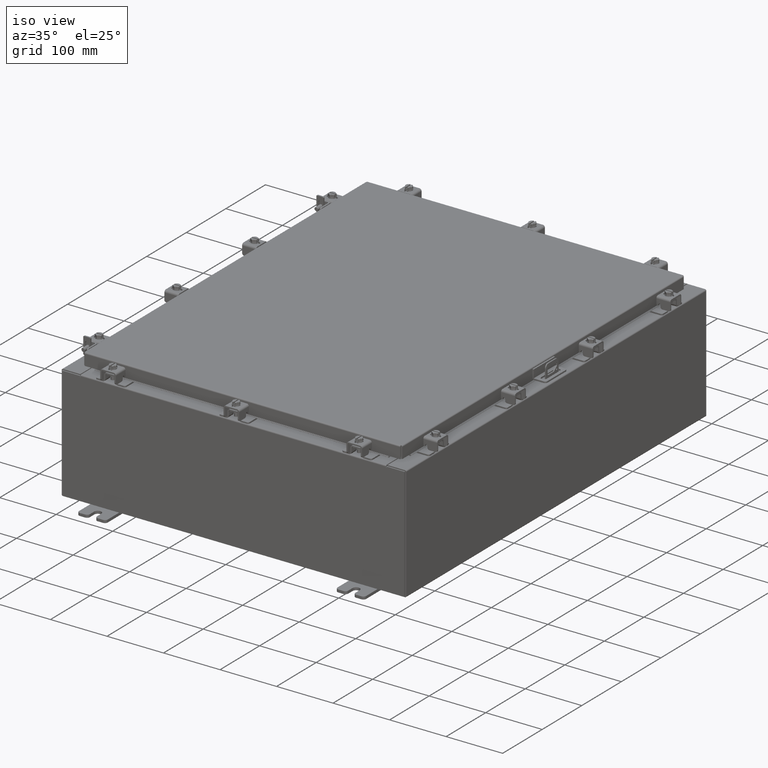
[diagram: clean part render]
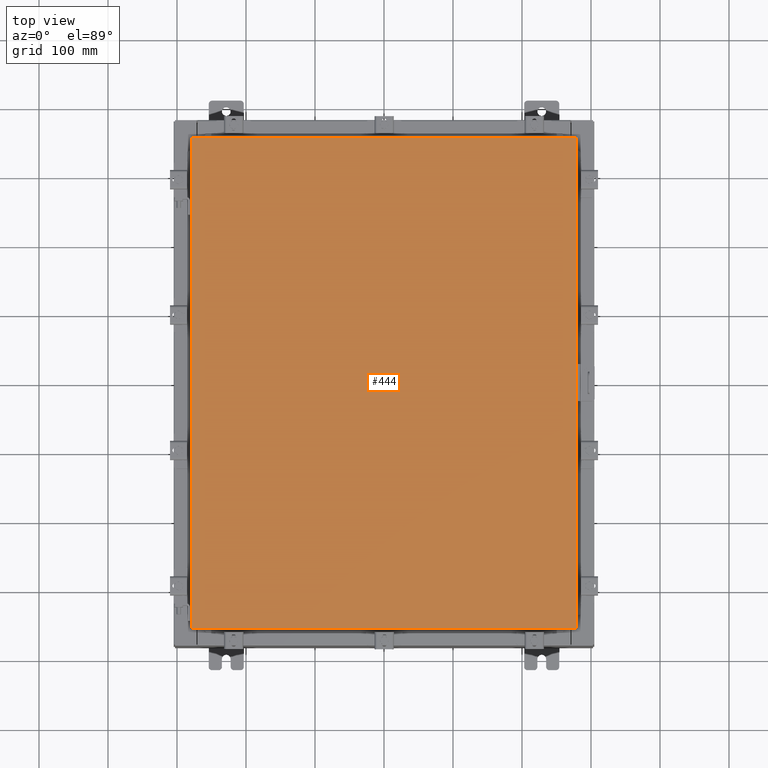
[diagram: tour spotlight — one face highlighted and labeled with its STEP entity id]
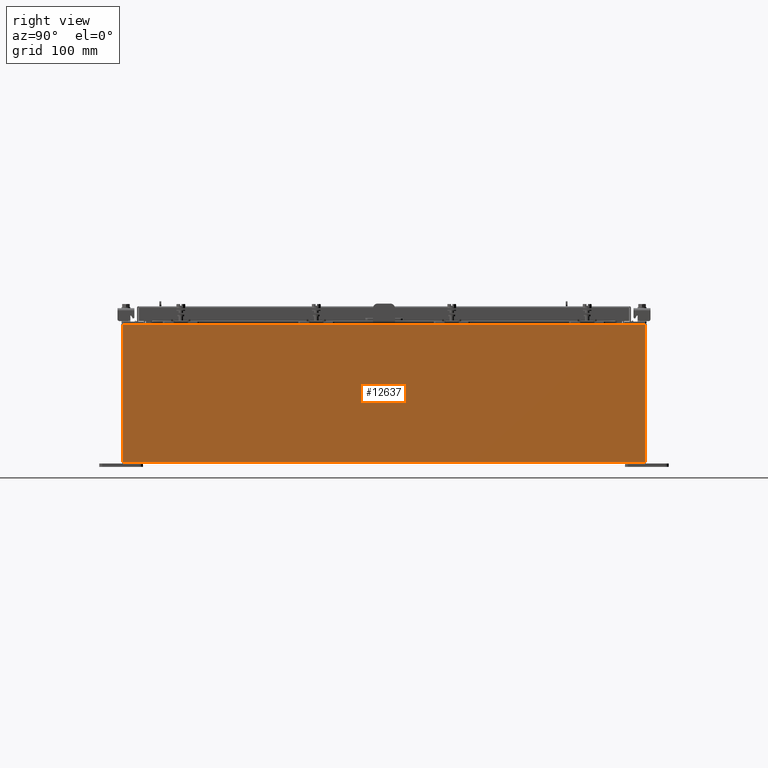
[diagram: tour spotlight — one face highlighted and labeled with its STEP entity id]
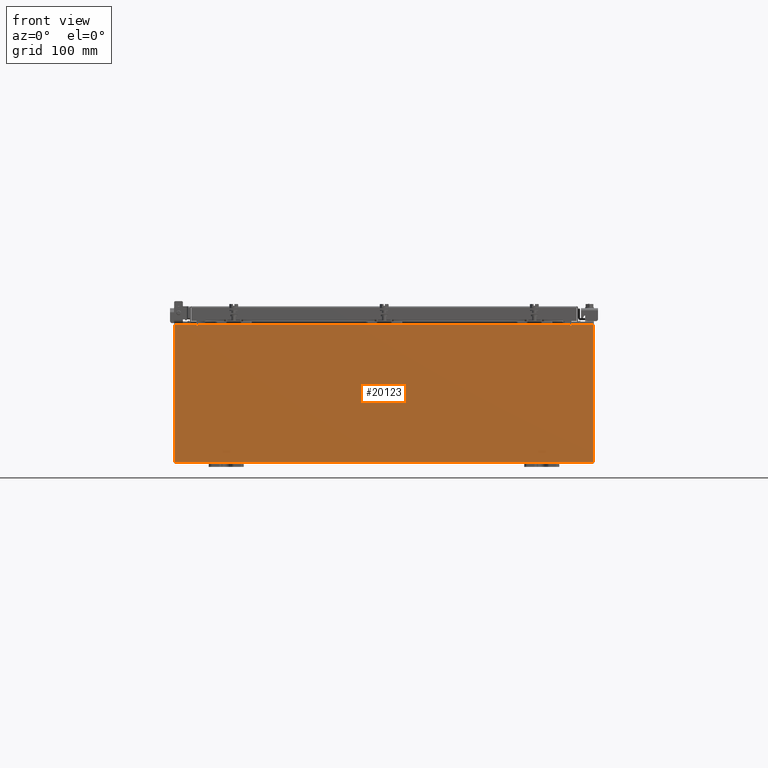
[diagram: tour spotlight — one face highlighted and labeled with its STEP entity id]
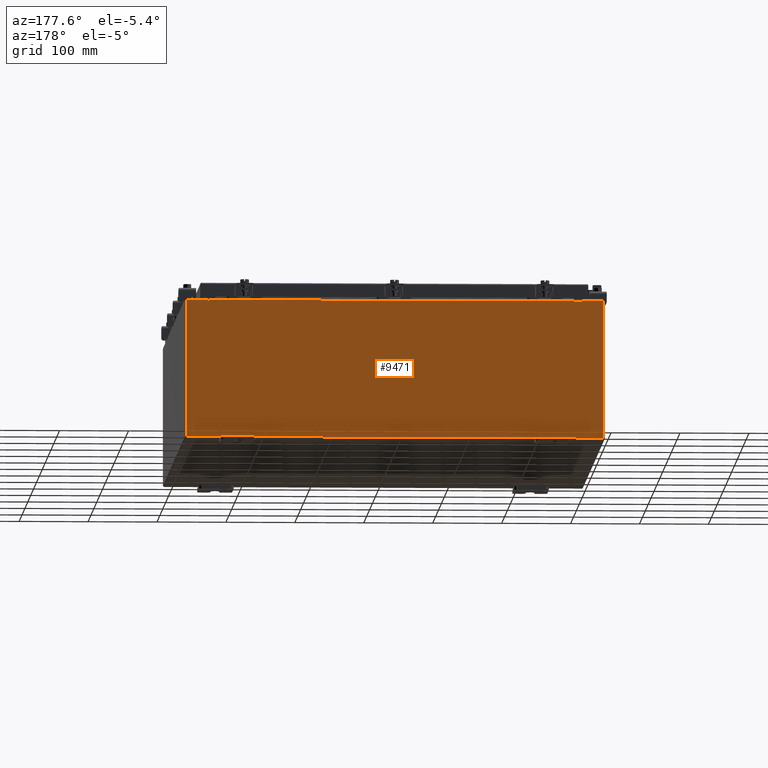
[diagram: tour spotlight — one face highlighted and labeled with its STEP entity id]
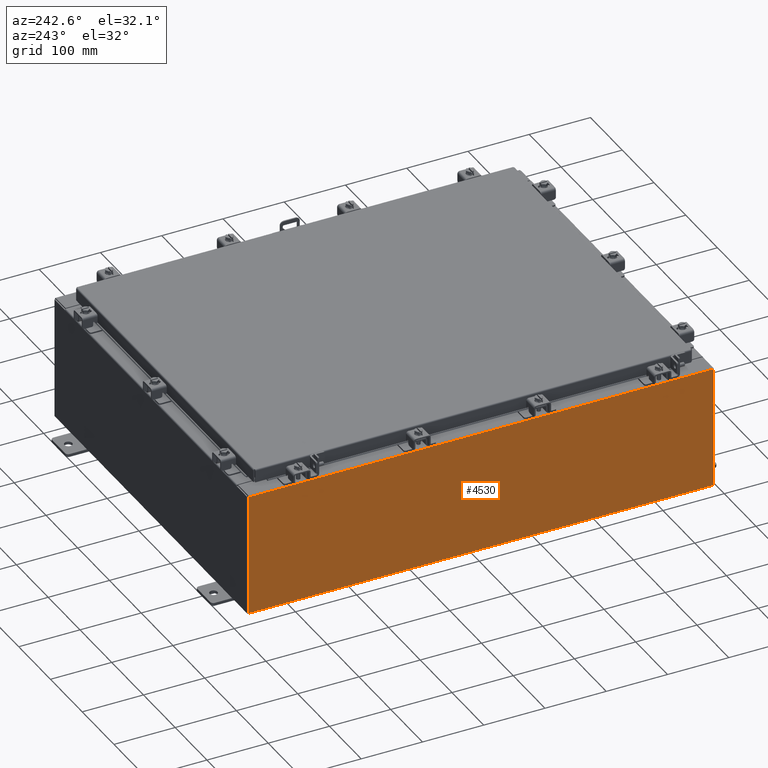
[diagram: tour spotlight — one face highlighted and labeled with its STEP entity id]
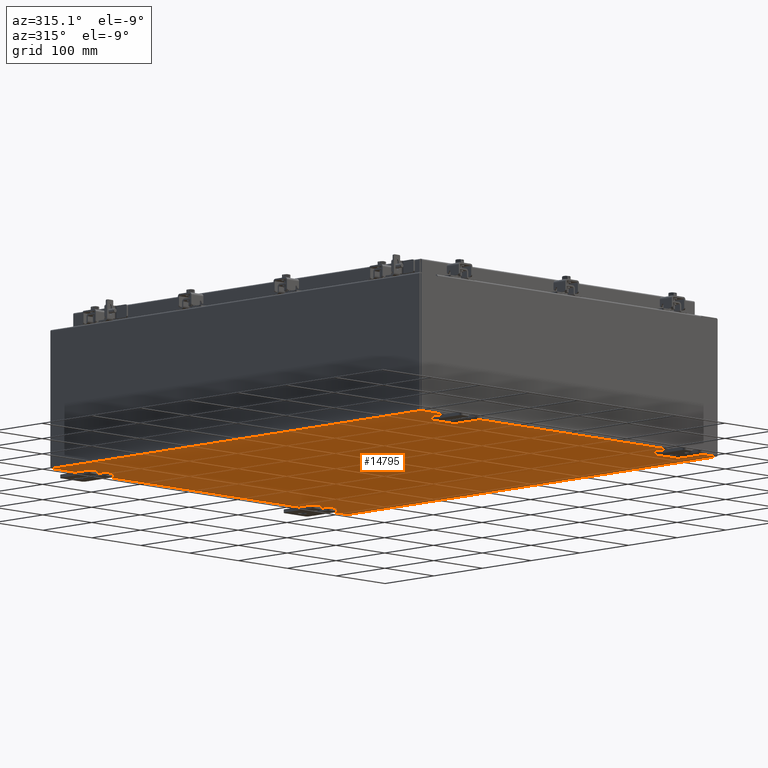
[diagram: tour spotlight — one face highlighted and labeled with its STEP entity id]
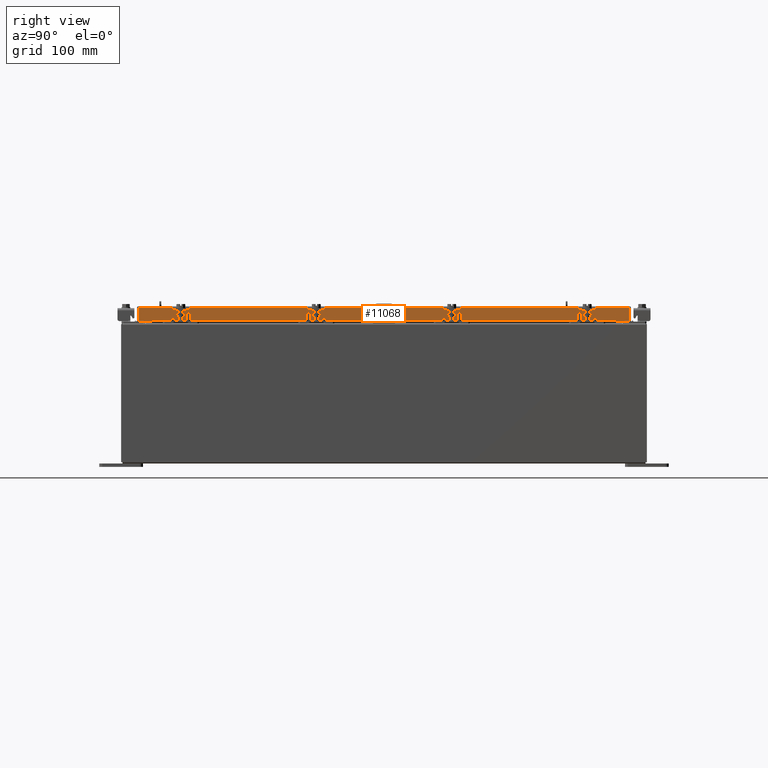
[diagram: tour spotlight — one face highlighted and labeled with its STEP entity id]
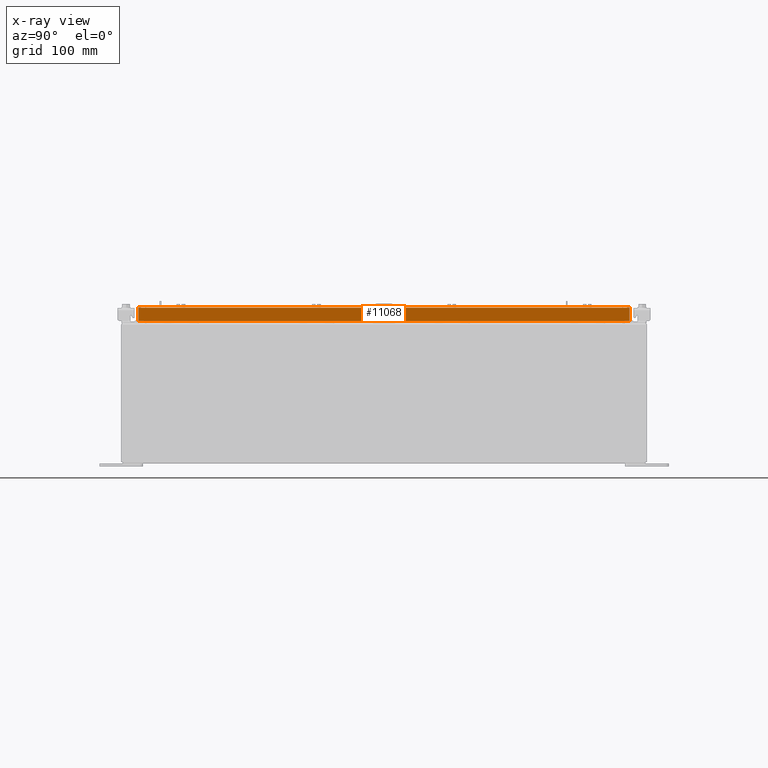
[diagram: x-ray of the same camera — body ghosted, this tour face saturated]
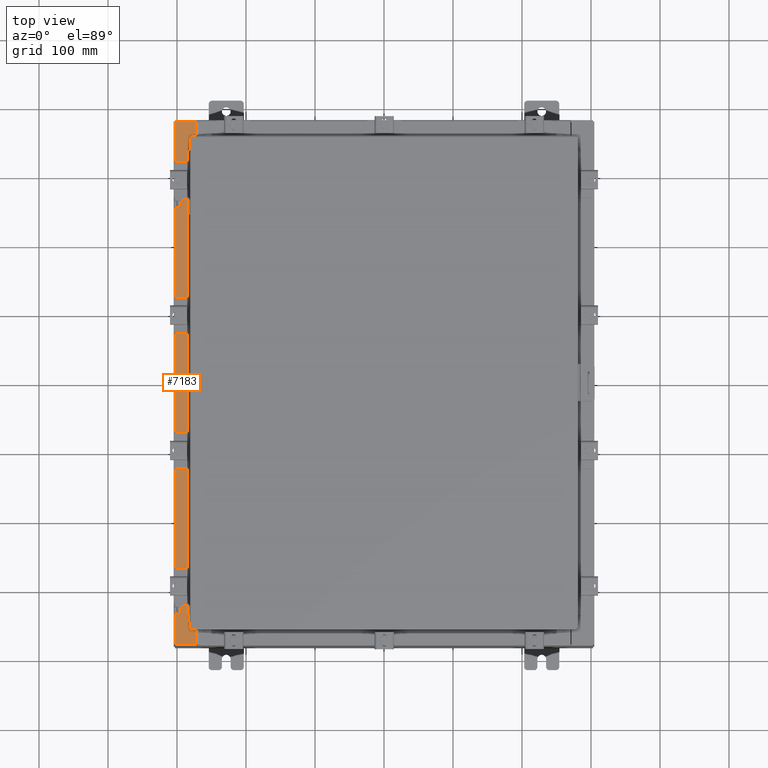
[diagram: tour spotlight — one face highlighted and labeled with its STEP entity id]
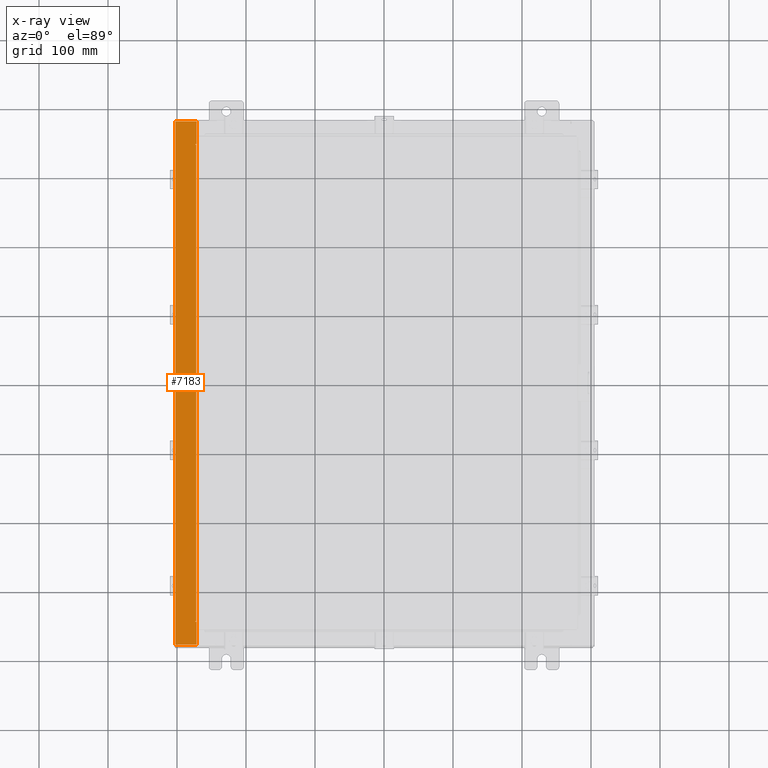
[diagram: x-ray of the same camera — body ghosted, this tour face saturated]
A machine part: a face-by-face anatomy tour. The part has 2272 B-rep faces; the first image is the clean iso view, then the 8 largest visible faces are spotlighted one at a time (largest first), each with its STEP entity span.

Face 1 — top view, entity #444. In plain terms, the highlighted planar face has unit normal (0, 0, -1).
Definition (entity closure, byte-faithful):
#444 = ADVANCED_FACE ( 'NONE', ( #2189 ), #13912, .F. ) ;
#977 = CARTESIAN_POINT ( 'NONE',  ( 10.99030000000000000, 14.00629999999999800, -2.048885995248197400E-016 ) ) ;
#1174 = ORIENTED_EDGE ( 'NONE', *, *, #12288, .T. ) ;
#1183 = CARTESIAN_POINT ( 'NONE',  ( -10.99030000000000000, 14.00630000000000100, -2.048885995248197400E-016 ) ) ;
#1711 = DIRECTION ( 'NONE',  ( 0.0000000000000000000, -1.000000000000000000, 0.0000000000000000000 ) ) ;
#2181 = LINE ( 'NONE', #12669, #6391 ) ;
#2189 = FACE_OUTER_BOUND ( 'NONE', #7653, .T. ) ;
#2960 = CARTESIAN_POINT ( 'NONE',  ( 10.99030000000000000, -14.00629999999999800, -2.048885995248197400E-016 ) ) ;
#3366 = DIRECTION ( 'NONE',  ( 0.0000000000000000000, 0.0000000000000000000, -1.000000000000000000 ) ) ;
#3475 = ORIENTED_EDGE ( 'NONE', *, *, #15108, .T. ) ;
#6391 = VECTOR ( 'NONE', #16245, 39.37007874015748100 ) ;
#6789 = LINE ( 'NONE', #977, #11558 ) ;
#7653 = EDGE_LOOP ( 'NONE', ( #22425, #3475, #1174, #15650 ) ) ;
#8072 = CARTESIAN_POINT ( 'NONE',  ( 10.99030000000000000, 14.00629999999999800, -2.048885995248197400E-016 ) ) ;
#8384 = EDGE_CURVE ( 'NONE', #9385, #17453, #2181, .T. ) ;
#8465 = CARTESIAN_POINT ( 'NONE',  ( 10.99030000000000000, -14.00629999999999800, -2.048885995248197400E-016 ) ) ;
#8575 = LINE ( 'NONE', #8465, #22800 ) ;
#9035 = VERTEX_POINT ( 'NONE', #8072 ) ;
#9385 = VERTEX_POINT ( 'NONE', #14160 ) ;
#11558 = VECTOR ( 'NONE', #13510, 39.37007874015748100 ) ;
#12288 = EDGE_CURVE ( 'NONE', #9035, #13798, #6789, .T. ) ;
#12669 = CARTESIAN_POINT ( 'NONE',  ( -10.99029999999999600, -14.00629999999999800, -2.219626494852214000E-016 ) ) ;
#12810 = LINE ( 'NONE', #15965, #22846 ) ;
#13135 = DIRECTION ( 'NONE',  ( -1.000000000000000000, 0.0000000000000000000, -0.0000000000000000000 ) ) ;
#13510 = DIRECTION ( 'NONE',  ( -1.000000000000000000, -0.0000000000000000000, -0.0000000000000000000 ) ) ;
#13798 = VERTEX_POINT ( 'NONE', #1183 ) ;
#13912 = PLANE ( 'NONE',  #19141 ) ;
#14057 = EDGE_CURVE ( 'NONE', #13798, #9385, #12810, .T. ) ;
#14160 = CARTESIAN_POINT ( 'NONE',  ( -10.99029999999999800, -14.00629999999999800, -2.048885995248197400E-016 ) ) ;
#14165 = CARTESIAN_POINT ( 'NONE',  ( 0.0000000000000000000, 0.0000000000000000000, 0.0000000000000000000 ) ) ;
#15108 = EDGE_CURVE ( 'NONE', #17453, #9035, #8575, .T. ) ;
#15650 = ORIENTED_EDGE ( 'NONE', *, *, #14057, .T. ) ;
#15965 = CARTESIAN_POINT ( 'NONE',  ( -10.99030000000000000, 14.00630000000000100, -2.048885995248197400E-016 ) ) ;
#16245 = DIRECTION ( 'NONE',  ( 1.000000000000000000, -0.0000000000000000000, -0.0000000000000000000 ) ) ;
#17453 = VERTEX_POINT ( 'NONE', #2960 ) ;
#19141 = AXIS2_PLACEMENT_3D ( 'NONE', #14165, #3366, #13135 ) ;
#19190 = DIRECTION ( 'NONE',  ( 0.0000000000000000000, 1.000000000000000000, 0.0000000000000000000 ) ) ;
#22425 = ORIENTED_EDGE ( 'NONE', *, *, #8384, .T. ) ;
#22800 = VECTOR ( 'NONE', #19190, 39.37007874015748100 ) ;
#22846 = VECTOR ( 'NONE', #1711, 39.37007874015748100 ) ;

Face 2 — right view, entity #12637. In plain terms, the highlighted planar face has unit normal (-1, 0, 0).
Definition (entity closure, byte-faithful):
#80 = DIRECTION ( 'NONE',  ( 3.584876173029202900E-015, 0.0000000000000000000, 1.000000000000000000 ) ) ;
#2300 = CARTESIAN_POINT ( 'NONE',  ( 11.99999999999999600, 14.92530000000000000, -4.327932773236200000E-014 ) ) ;
#2888 = ORIENTED_EDGE ( 'NONE', *, *, #18804, .T. ) ;
#4351 = EDGE_LOOP ( 'NONE', ( #11504, #22464, #8270, #2888 ) ) ;
#4611 = DIRECTION ( 'NONE',  ( -0.0000000000000000000, -1.000000000000000000, -0.0000000000000000000 ) ) ;
#8270 = ORIENTED_EDGE ( 'NONE', *, *, #11906, .F. ) ;
#8442 = DIRECTION ( 'NONE',  ( -3.584876173029202900E-015, 0.0000000000000000000, -1.000000000000000000 ) ) ;
#8918 = DIRECTION ( 'NONE',  ( 2.624627117933885000E-031, -1.000000000000000000, 7.321388497823866900E-017 ) ) ;
#9026 = FACE_OUTER_BOUND ( 'NONE', #4351, .T. ) ;
#9531 = VERTEX_POINT ( 'NONE', #12752 ) ;
#9820 = VECTOR ( 'NONE', #8442, 39.37007874015748100 ) ;
#10509 = CARTESIAN_POINT ( 'NONE',  ( 12.00000000000002500, -14.92530000000000200, 7.837599999999998300 ) ) ;
#10815 = DIRECTION ( 'NONE',  ( -1.000000000000000000, 0.0000000000000000000, 3.584876173029202900E-015 ) ) ;
#11077 = LINE ( 'NONE', #17133, #11657 ) ;
#11205 = DIRECTION ( 'NONE',  ( 3.584876173029202900E-015, 0.0000000000000000000, 1.000000000000000000 ) ) ;
#11504 = ORIENTED_EDGE ( 'NONE', *, *, #21220, .T. ) ;
#11657 = VECTOR ( 'NONE', #4611, 39.37007874015748100 ) ;
#11906 = EDGE_CURVE ( 'NONE', #9531, #12717, #14095, .T. ) ;
#12637 = ADVANCED_FACE ( 'NONE', ( #9026 ), #14336, .F. ) ;
#12717 = VERTEX_POINT ( 'NONE', #18124 ) ;
#12752 = CARTESIAN_POINT ( 'NONE',  ( 11.99999999999999600, 14.92530000000000000, 0.01299999999999766100 ) ) ;
#13276 = VERTEX_POINT ( 'NONE', #10509 ) ;
#14021 = LINE ( 'NONE', #20920, #9820 ) ;
#14095 = LINE ( 'NONE', #21382, #18876 ) ;
#14336 = PLANE ( 'NONE',  #14553 ) ;
#14553 = AXIS2_PLACEMENT_3D ( 'NONE', #21521, #10815, #80 ) ;
#16423 = CARTESIAN_POINT ( 'NONE',  ( 12.00000000000002500, 14.92530000000000200, 7.837599999999992100 ) ) ;
#17133 = CARTESIAN_POINT ( 'NONE',  ( 12.00000000000002500, 14.92530000000000200, 7.837599999999992100 ) ) ;
#18124 = CARTESIAN_POINT ( 'NONE',  ( 11.99999999999999600, -14.92530000000000000, 0.01299999999999996600 ) ) ;
#18445 = EDGE_CURVE ( 'NONE', #13276, #12717, #14021, .T. ) ;
#18804 = EDGE_CURVE ( 'NONE', #9531, #20930, #20437, .T. ) ;
#18876 = VECTOR ( 'NONE', #8918, 39.37007874015748100 ) ;
#19879 = VECTOR ( 'NONE', #11205, 39.37007874015748100 ) ;
#20437 = LINE ( 'NONE', #2300, #19879 ) ;
#20920 = CARTESIAN_POINT ( 'NONE',  ( 11.99999999999999600, -14.92530000000000000, -4.327932773236200000E-014 ) ) ;
#20930 = VERTEX_POINT ( 'NONE', #16423 ) ;
#21220 = EDGE_CURVE ( 'NONE', #20930, #13276, #11077, .T. ) ;
#21382 = CARTESIAN_POINT ( 'NONE',  ( 11.99999999999999600, -14.92530000000000000, 0.01299999999999984700 ) ) ;
#21521 = CARTESIAN_POINT ( 'NONE',  ( 11.99999999999999600, 0.0000000000000000000, -4.327932773236200000E-014 ) ) ;
#22464 = ORIENTED_EDGE ( 'NONE', *, *, #18445, .T. ) ;

Face 3 — front view, entity #20123. In plain terms, the highlighted planar face has unit normal (-0, 1, -0).
Definition (entity closure, byte-faithful):
#379 = CARTESIAN_POINT ( 'NONE',  ( -10.63720000000000400, 1.024442997624098700E-016, 3.912299999999999700 ) ) ;
#703 = VERTEX_POINT ( 'NONE', #7429 ) ;
#1031 = EDGE_CURVE ( 'NONE', #703, #22167, #2748, .T. ) ;
#1087 = CARTESIAN_POINT ( 'NONE',  ( -10.67455000000000200, 0.0000000000000000000, 3.874949999999999700 ) ) ;
#1272 = CARTESIAN_POINT ( 'NONE',  ( -11.92530000000000000, 0.0000000000000000000, -3.925299999999999600 ) ) ;
#1382 = EDGE_CURVE ( 'NONE', #6997, #16757, #16302, .T. ) ;
#1811 = ORIENTED_EDGE ( 'NONE', *, *, #18619, .T. ) ;
#1866 = ORIENTED_EDGE ( 'NONE', *, *, #1031, .F. ) ;
#1902 = EDGE_CURVE ( 'NONE', #22213, #5678, #4251, .T. ) ;
#2601 = LINE ( 'NONE', #9896, #10980 ) ;
#2625 = LINE ( 'NONE', #1272, #20531 ) ;
#2748 = LINE ( 'NONE', #12612, #22310 ) ;
#4251 = LINE ( 'NONE', #10752, #13226 ) ;
#4325 = ORIENTED_EDGE ( 'NONE', *, *, #13039, .F. ) ;
#4580 = DIRECTION ( 'NONE',  ( 1.000000000000000000, 0.0000000000000000000, 0.0000000000000000000 ) ) ;
#4617 = DIRECTION ( 'NONE',  ( -0.0000000000000000000, -0.0000000000000000000, 1.000000000000000000 ) ) ;
#5217 = CARTESIAN_POINT ( 'NONE',  ( 11.92530000000000000, 0.0000000000000000000, -3.925299999999999600 ) ) ;
#5239 = CIRCLE ( 'NONE', #23164, 0.01867499999999949400 ) ;
#5275 = CARTESIAN_POINT ( 'NONE',  ( 10.63720000000000400, 0.0000000000000000000, 3.912299999999999700 ) ) ;
#5281 = CARTESIAN_POINT ( 'NONE',  ( 10.67455000000000200, 0.0000000000000000000, 3.874949999999999700 ) ) ;
#5330 = VECTOR ( 'NONE', #19695, 39.37007874015748100 ) ;
#5450 = ORIENTED_EDGE ( 'NONE', *, *, #16314, .T. ) ;
#5678 = VERTEX_POINT ( 'NONE', #5281 ) ;
#5931 = DIRECTION ( 'NONE',  ( 1.000000000000000000, 0.0000000000000000000, 0.0000000000000000000 ) ) ;
#6050 = LINE ( 'NONE', #8429, #20329 ) ;
#6317 = DIRECTION ( 'NONE',  ( 0.0000000000000000000, 0.0000000000000000000, 1.000000000000000000 ) ) ;
#6881 = DIRECTION ( 'NONE',  ( -0.0000000000000000000, 1.000000000000000000, -0.0000000000000000000 ) ) ;
#6947 = AXIS2_PLACEMENT_3D ( 'NONE', #17612, #6881, #19420 ) ;
#6997 = VERTEX_POINT ( 'NONE', #16480 ) ;
#7295 = CARTESIAN_POINT ( 'NONE',  ( 10.67455000000000200, 0.0000000000000000000, 3.925299999999999600 ) ) ;
#7429 = CARTESIAN_POINT ( 'NONE',  ( 10.63720000000000400, 0.0000000000000000000, 3.874949999999999700 ) ) ;
#7796 = CARTESIAN_POINT ( 'NONE',  ( 11.92530000000000000, 0.0000000000000000000, 3.925299999999999600 ) ) ;
#8398 = FACE_OUTER_BOUND ( 'NONE', #11178, .T. ) ;
#8429 = CARTESIAN_POINT ( 'NONE',  ( -10.63720000000000400, 1.024442997624098700E-016, 3.912299999999999700 ) ) ;
#8791 = VERTEX_POINT ( 'NONE', #379 ) ;
#9310 = DIRECTION ( 'NONE',  ( 0.0000000000000000000, -1.000000000000000000, 0.0000000000000000000 ) ) ;
#9600 = ORIENTED_EDGE ( 'NONE', *, *, #20805, .F. ) ;
#9677 = CARTESIAN_POINT ( 'NONE',  ( -10.65587500000000200, 0.0000000000000000000, 3.874949999999999700 ) ) ;
#9730 = VERTEX_POINT ( 'NONE', #13446 ) ;
#9849 = EDGE_CURVE ( 'NONE', #8791, #22167, #6050, .T. ) ;
#9896 = CARTESIAN_POINT ( 'NONE',  ( -11.92530000000000000, 0.0000000000000000000, 3.925299999999999600 ) ) ;
#9953 = CARTESIAN_POINT ( 'NONE',  ( -11.92530000000000000, 0.0000000000000000000, 3.925299999999999600 ) ) ;
#10138 = ORIENTED_EDGE ( 'NONE', *, *, #1382, .T. ) ;
#10216 = CARTESIAN_POINT ( 'NONE',  ( -10.67455000000000200, 0.0000000000000000000, 3.925299999999999600 ) ) ;
#10752 = CARTESIAN_POINT ( 'NONE',  ( 10.67454999999983300, -0.0000000000000000000, -4.633366117301815000E-013 ) ) ;
#10786 = ORIENTED_EDGE ( 'NONE', *, *, #15598, .F. ) ;
#10980 = VECTOR ( 'NONE', #4580, 39.37007874015748100 ) ;
#11167 = CARTESIAN_POINT ( 'NONE',  ( -11.92530000000000000, 0.0000000000000000000, 3.925299999999999600 ) ) ;
#11178 = EDGE_LOOP ( 'NONE', ( #10786, #9600, #4325, #15750, #1866, #18601, #16694, #12083, #1811, #5450, #10138, #11977 ) ) ;
#11473 = DIRECTION ( 'NONE',  ( 0.0000000000000000000, 0.0000000000000000000, -1.000000000000000000 ) ) ;
#11977 = ORIENTED_EDGE ( 'NONE', *, *, #22931, .T. ) ;
#12083 = ORIENTED_EDGE ( 'NONE', *, *, #12299, .T. ) ;
#12093 = AXIS2_PLACEMENT_3D ( 'NONE', #12831, #9310, #21795 ) ;
#12184 = VECTOR ( 'NONE', #5931, 39.37007874015748100 ) ;
#12299 = EDGE_CURVE ( 'NONE', #22213, #21743, #2601, .T. ) ;
#12598 = DIRECTION ( 'NONE',  ( 0.0000000000000000000, 0.0000000000000000000, 1.000000000000000000 ) ) ;
#12612 = CARTESIAN_POINT ( 'NONE',  ( 10.63720000000000400, 0.0000000000000000000, 0.0000000000000000000 ) ) ;
#12831 = CARTESIAN_POINT ( 'NONE',  ( 0.0000000000000000000, 0.0000000000000000000, 0.0000000000000000000 ) ) ;
#13039 = EDGE_CURVE ( 'NONE', #8791, #9730, #16544, .T. ) ;
#13218 = DIRECTION ( 'NONE',  ( -4.340572780400004900E-014, 0.0000000000000000000, -1.000000000000000000 ) ) ;
#13226 = VECTOR ( 'NONE', #13218, 39.37007874015748100 ) ;
#13298 = LINE ( 'NONE', #15218, #21663 ) ;
#13446 = CARTESIAN_POINT ( 'NONE',  ( -10.63720000000000400, -0.0000000000000000000, 3.874949999999999700 ) ) ;
#13874 = CARTESIAN_POINT ( 'NONE',  ( -10.63720000000000400, -0.0000000000000000000, 0.0000000000000000000 ) ) ;
#14505 = VERTEX_POINT ( 'NONE', #1087 ) ;
#15150 = EDGE_CURVE ( 'NONE', #5678, #703, #21692, .T. ) ;
#15218 = CARTESIAN_POINT ( 'NONE',  ( -10.67455000000000200, -0.0000000000000000000, 0.0000000000000000000 ) ) ;
#15598 = EDGE_CURVE ( 'NONE', #14505, #17529, #13298, .T. ) ;
#15646 = DIRECTION ( 'NONE',  ( 0.0000000000000000000, 0.0000000000000000000, -1.000000000000000000 ) ) ;
#15750 = ORIENTED_EDGE ( 'NONE', *, *, #9849, .T. ) ;
#15798 = VERTEX_POINT ( 'NONE', #5217 ) ;
#16302 = LINE ( 'NONE', #18989, #20506 ) ;
#16314 = EDGE_CURVE ( 'NONE', #15798, #6997, #2625, .T. ) ;
#16412 = PLANE ( 'NONE',  #12093 ) ;
#16480 = CARTESIAN_POINT ( 'NONE',  ( -11.92530000000000000, 0.0000000000000000000, -3.925299999999999600 ) ) ;
#16544 = LINE ( 'NONE', #13874, #20746 ) ;
#16694 = ORIENTED_EDGE ( 'NONE', *, *, #1902, .F. ) ;
#16757 = VERTEX_POINT ( 'NONE', #9953 ) ;
#17500 = LINE ( 'NONE', #11167, #12184 ) ;
#17529 = VERTEX_POINT ( 'NONE', #10216 ) ;
#17612 = CARTESIAN_POINT ( 'NONE',  ( 10.65587500000000200, 0.0000000000000000000, 3.874949999999999700 ) ) ;
#17904 = CARTESIAN_POINT ( 'NONE',  ( 11.92530000000000000, 0.0000000000000000000, 3.925299999999999600 ) ) ;
#18601 = ORIENTED_EDGE ( 'NONE', *, *, #15150, .F. ) ;
#18619 = EDGE_CURVE ( 'NONE', #21743, #15798, #19604, .T. ) ;
#18989 = CARTESIAN_POINT ( 'NONE',  ( -11.92530000000000000, 0.0000000000000000000, 3.925299999999999600 ) ) ;
#19420 = DIRECTION ( 'NONE',  ( 0.0000000000000000000, 0.0000000000000000000, -1.000000000000000000 ) ) ;
#19604 = LINE ( 'NONE', #17904, #5330 ) ;
#19695 = DIRECTION ( 'NONE',  ( 0.0000000000000000000, 0.0000000000000000000, -1.000000000000000000 ) ) ;
#20123 = ADVANCED_FACE ( 'NONE', ( #8398 ), #16412, .F. ) ;
#20329 = VECTOR ( 'NONE', #20911, 39.37007874015748100 ) ;
#20506 = VECTOR ( 'NONE', #4617, 39.37007874015748100 ) ;
#20531 = VECTOR ( 'NONE', #22674, 39.37007874015748100 ) ;
#20746 = VECTOR ( 'NONE', #15646, 39.37007874015748100 ) ;
#20805 = EDGE_CURVE ( 'NONE', #9730, #14505, #5239, .T. ) ;
#20911 = DIRECTION ( 'NONE',  ( 1.000000000000000000, 0.0000000000000000000, 0.0000000000000000000 ) ) ;
#21663 = VECTOR ( 'NONE', #6317, 39.37007874015748100 ) ;
#21692 = CIRCLE ( 'NONE', #6947, 0.01867499999999949400 ) ;
#21743 = VERTEX_POINT ( 'NONE', #7796 ) ;
#21795 = DIRECTION ( 'NONE',  ( 0.0000000000000000000, -0.0000000000000000000, -1.000000000000000000 ) ) ;
#22153 = DIRECTION ( 'NONE',  ( -0.0000000000000000000, 1.000000000000000000, -0.0000000000000000000 ) ) ;
#22167 = VERTEX_POINT ( 'NONE', #5275 ) ;
#22213 = VERTEX_POINT ( 'NONE', #7295 ) ;
#22310 = VECTOR ( 'NONE', #12598, 39.37007874015748100 ) ;
#22674 = DIRECTION ( 'NONE',  ( -1.000000000000000000, -0.0000000000000000000, -0.0000000000000000000 ) ) ;
#22931 = EDGE_CURVE ( 'NONE', #16757, #17529, #17500, .T. ) ;
#23164 = AXIS2_PLACEMENT_3D ( 'NONE', #9677, #22153, #11473 ) ;

Face 4 — auxiliary view, entity #9471. In plain terms, the highlighted planar face has unit normal (0, -1, 0).
Definition (entity closure, byte-faithful):
#51 = ORIENTED_EDGE ( 'NONE', *, *, #3157, .T. ) ;
#206 = AXIS2_PLACEMENT_3D ( 'NONE', #16168, #3590, #19791 ) ;
#463 = CARTESIAN_POINT ( 'NONE',  ( 10.67454999999983300, -0.0000000000000000000, -4.633366117301815000E-013 ) ) ;
#637 = VERTEX_POINT ( 'NONE', #4682 ) ;
#790 = ORIENTED_EDGE ( 'NONE', *, *, #2880, .T. ) ;
#954 = VECTOR ( 'NONE', #12718, 39.37007874015748100 ) ;
#1208 = VERTEX_POINT ( 'NONE', #6979 ) ;
#1211 = CARTESIAN_POINT ( 'NONE',  ( 10.63720000000000400, 0.0000000000000000000, 0.0000000000000000000 ) ) ;
#1363 = CARTESIAN_POINT ( 'NONE',  ( -11.92530000000000000, 0.0000000000000000000, 3.925299999999999600 ) ) ;
#1411 = DIRECTION ( 'NONE',  ( 1.000000000000000000, 0.0000000000000000000, 0.0000000000000000000 ) ) ;
#1539 = VERTEX_POINT ( 'NONE', #16994 ) ;
#1722 = DIRECTION ( 'NONE',  ( 1.000000000000000000, 0.0000000000000000000, 0.0000000000000000000 ) ) ;
#2411 = CARTESIAN_POINT ( 'NONE',  ( -10.65587500000000200, 0.0000000000000000000, 3.874949999999999700 ) ) ;
#2653 = VECTOR ( 'NONE', #1722, 39.37007874015748100 ) ;
#2701 = VERTEX_POINT ( 'NONE', #8806 ) ;
#2880 = EDGE_CURVE ( 'NONE', #3990, #21130, #8986, .T. ) ;
#3157 = EDGE_CURVE ( 'NONE', #637, #3990, #10357, .T. ) ;
#3161 = CARTESIAN_POINT ( 'NONE',  ( -11.92530000000000000, 0.0000000000000000000, -3.925299999999999600 ) ) ;
#3278 = FACE_OUTER_BOUND ( 'NONE', #13904, .T. ) ;
#3420 = CARTESIAN_POINT ( 'NONE',  ( 11.92530000000000000, 0.0000000000000000000, 3.925299999999999600 ) ) ;
#3590 = DIRECTION ( 'NONE',  ( 0.0000000000000000000, -1.000000000000000000, 0.0000000000000000000 ) ) ;
#3617 = DIRECTION ( 'NONE',  ( -0.0000000000000000000, 1.000000000000000000, -0.0000000000000000000 ) ) ;
#3962 = VECTOR ( 'NONE', #8232, 39.37007874015748100 ) ;
#3990 = VERTEX_POINT ( 'NONE', #16781 ) ;
#4047 = ORIENTED_EDGE ( 'NONE', *, *, #17083, .F. ) ;
#4205 = VECTOR ( 'NONE', #1411, 39.37007874015748100 ) ;
#4212 = CARTESIAN_POINT ( 'NONE',  ( 10.67455000000000200, 0.0000000000000000000, 3.874949999999999700 ) ) ;
#4334 = EDGE_CURVE ( 'NONE', #1208, #12785, #13970, .T. ) ;
#4463 = VECTOR ( 'NONE', #15939, 39.37007874015748100 ) ;
#4682 = CARTESIAN_POINT ( 'NONE',  ( -11.92530000000000000, 0.0000000000000000000, -3.925299999999999600 ) ) ;
#5095 = EDGE_CURVE ( 'NONE', #1539, #637, #14759, .T. ) ;
#5261 = VECTOR ( 'NONE', #8504, 39.37007874015748100 ) ;
#5474 = DIRECTION ( 'NONE',  ( 0.0000000000000000000, 0.0000000000000000000, 1.000000000000000000 ) ) ;
#5629 = DIRECTION ( 'NONE',  ( -0.0000000000000000000, 1.000000000000000000, -0.0000000000000000000 ) ) ;
#6735 = EDGE_CURVE ( 'NONE', #2701, #1539, #9789, .T. ) ;
#6979 = CARTESIAN_POINT ( 'NONE',  ( -10.63720000000000400, -0.0000000000000000000, 3.874949999999999700 ) ) ;
#7071 = VECTOR ( 'NONE', #5474, 39.37007874015748100 ) ;
#7193 = ORIENTED_EDGE ( 'NONE', *, *, #4334, .F. ) ;
#7393 = ORIENTED_EDGE ( 'NONE', *, *, #14100, .F. ) ;
#7675 = VERTEX_POINT ( 'NONE', #8573 ) ;
#7934 = ORIENTED_EDGE ( 'NONE', *, *, #7942, .F. ) ;
#7942 = EDGE_CURVE ( 'NONE', #21327, #14303, #9498, .T. ) ;
#8114 = ORIENTED_EDGE ( 'NONE', *, *, #11385, .T. ) ;
#8232 = DIRECTION ( 'NONE',  ( 0.0000000000000000000, 0.0000000000000000000, -1.000000000000000000 ) ) ;
#8504 = DIRECTION ( 'NONE',  ( -1.000000000000000000, -0.0000000000000000000, -0.0000000000000000000 ) ) ;
#8573 = CARTESIAN_POINT ( 'NONE',  ( 10.63720000000000400, 0.0000000000000000000, 3.912299999999999700 ) ) ;
#8770 = LINE ( 'NONE', #18007, #7071 ) ;
#8806 = CARTESIAN_POINT ( 'NONE',  ( 11.92530000000000000, 0.0000000000000000000, 3.925299999999999600 ) ) ;
#8822 = ORIENTED_EDGE ( 'NONE', *, *, #6735, .T. ) ;
#8986 = LINE ( 'NONE', #1363, #4205 ) ;
#9299 = LINE ( 'NONE', #13567, #3962 ) ;
#9388 = DIRECTION ( 'NONE',  ( 0.0000000000000000000, 0.0000000000000000000, -1.000000000000000000 ) ) ;
#9471 = ADVANCED_FACE ( 'NONE', ( #3278 ), #17995, .F. ) ;
#9498 = LINE ( 'NONE', #463, #19035 ) ;
#9789 = LINE ( 'NONE', #3420, #4463 ) ;
#10145 = CARTESIAN_POINT ( 'NONE',  ( 10.67455000000000200, 0.0000000000000000000, 3.925299999999999600 ) ) ;
#10357 = LINE ( 'NONE', #13098, #13461 ) ;
#10401 = VERTEX_POINT ( 'NONE', #15634 ) ;
#10754 = VECTOR ( 'NONE', #13755, 39.37007874015748100 ) ;
#10820 = DIRECTION ( 'NONE',  ( -0.0000000000000000000, -0.0000000000000000000, 1.000000000000000000 ) ) ;
#10981 = VERTEX_POINT ( 'NONE', #22320 ) ;
#11056 = EDGE_CURVE ( 'NONE', #10401, #7675, #20280, .T. ) ;
#11112 = CARTESIAN_POINT ( 'NONE',  ( -10.67455000000000200, 0.0000000000000000000, 3.874949999999999700 ) ) ;
#11113 = AXIS2_PLACEMENT_3D ( 'NONE', #14321, #3617, #16121 ) ;
#11385 = EDGE_CURVE ( 'NONE', #21327, #2701, #15221, .T. ) ;
#12253 = CIRCLE ( 'NONE', #11113, 0.01867499999999949400 ) ;
#12718 = DIRECTION ( 'NONE',  ( 1.000000000000000000, 0.0000000000000000000, 0.0000000000000000000 ) ) ;
#12785 = VERTEX_POINT ( 'NONE', #11112 ) ;
#12916 = EDGE_CURVE ( 'NONE', #10981, #1208, #9299, .T. ) ;
#12997 = DIRECTION ( 'NONE',  ( -4.340572780400004900E-014, 0.0000000000000000000, -1.000000000000000000 ) ) ;
#13098 = CARTESIAN_POINT ( 'NONE',  ( -11.92530000000000000, 0.0000000000000000000, 3.925299999999999600 ) ) ;
#13461 = VECTOR ( 'NONE', #10820, 39.37007874015748100 ) ;
#13567 = CARTESIAN_POINT ( 'NONE',  ( -10.63720000000000400, -0.0000000000000000000, 0.0000000000000000000 ) ) ;
#13755 = DIRECTION ( 'NONE',  ( 0.0000000000000000000, 0.0000000000000000000, 1.000000000000000000 ) ) ;
#13904 = EDGE_LOOP ( 'NONE', ( #4047, #7193, #21118, #14642, #14364, #7393, #7934, #8114, #8822, #22237, #51, #790 ) ) ;
#13970 = CIRCLE ( 'NONE', #20360, 0.01867499999999949400 ) ;
#14100 = EDGE_CURVE ( 'NONE', #14303, #10401, #12253, .T. ) ;
#14303 = VERTEX_POINT ( 'NONE', #4212 ) ;
#14321 = CARTESIAN_POINT ( 'NONE',  ( 10.65587500000000200, 0.0000000000000000000, 3.874949999999999700 ) ) ;
#14364 = ORIENTED_EDGE ( 'NONE', *, *, #11056, .F. ) ;
#14642 = ORIENTED_EDGE ( 'NONE', *, *, #22181, .T. ) ;
#14759 = LINE ( 'NONE', #3161, #5261 ) ;
#15221 = LINE ( 'NONE', #19839, #954 ) ;
#15634 = CARTESIAN_POINT ( 'NONE',  ( 10.63720000000000400, 0.0000000000000000000, 3.874949999999999700 ) ) ;
#15939 = DIRECTION ( 'NONE',  ( 0.0000000000000000000, 0.0000000000000000000, -1.000000000000000000 ) ) ;
#16121 = DIRECTION ( 'NONE',  ( 0.0000000000000000000, 0.0000000000000000000, -1.000000000000000000 ) ) ;
#16134 = CARTESIAN_POINT ( 'NONE',  ( -10.63720000000000400, 1.024442997624098700E-016, 3.912299999999999700 ) ) ;
#16168 = CARTESIAN_POINT ( 'NONE',  ( 0.0000000000000000000, 0.0000000000000000000, 0.0000000000000000000 ) ) ;
#16781 = CARTESIAN_POINT ( 'NONE',  ( -11.92530000000000000, 0.0000000000000000000, 3.925299999999999600 ) ) ;
#16994 = CARTESIAN_POINT ( 'NONE',  ( 11.92530000000000000, 0.0000000000000000000, -3.925299999999999600 ) ) ;
#17083 = EDGE_CURVE ( 'NONE', #12785, #21130, #8770, .T. ) ;
#17995 = PLANE ( 'NONE',  #206 ) ;
#18007 = CARTESIAN_POINT ( 'NONE',  ( -10.67455000000000200, -0.0000000000000000000, 0.0000000000000000000 ) ) ;
#19035 = VECTOR ( 'NONE', #12997, 39.37007874015748100 ) ;
#19791 = DIRECTION ( 'NONE',  ( 0.0000000000000000000, -0.0000000000000000000, -1.000000000000000000 ) ) ;
#19839 = CARTESIAN_POINT ( 'NONE',  ( -11.92530000000000000, 0.0000000000000000000, 3.925299999999999600 ) ) ;
#20280 = LINE ( 'NONE', #1211, #10754 ) ;
#20360 = AXIS2_PLACEMENT_3D ( 'NONE', #2411, #5629, #9388 ) ;
#20478 = CARTESIAN_POINT ( 'NONE',  ( -10.67455000000000200, 0.0000000000000000000, 3.925299999999999600 ) ) ;
#21118 = ORIENTED_EDGE ( 'NONE', *, *, #12916, .F. ) ;
#21130 = VERTEX_POINT ( 'NONE', #20478 ) ;
#21327 = VERTEX_POINT ( 'NONE', #10145 ) ;
#21665 = LINE ( 'NONE', #16134, #2653 ) ;
#22181 = EDGE_CURVE ( 'NONE', #10981, #7675, #21665, .T. ) ;
#22237 = ORIENTED_EDGE ( 'NONE', *, *, #5095, .T. ) ;
#22320 = CARTESIAN_POINT ( 'NONE',  ( -10.63720000000000400, 1.024442997624098700E-016, 3.912299999999999700 ) ) ;

Face 5 — auxiliary view, entity #4530. In plain terms, the highlighted planar face has unit normal (1, 0, 0).
Definition (entity closure, byte-faithful):
#267 = AXIS2_PLACEMENT_3D ( 'NONE', #15957, #3216, #8128 ) ;
#433 = VECTOR ( 'NONE', #10071, 39.37007874015748100 ) ;
#975 = CARTESIAN_POINT ( 'NONE',  ( -12.00000000000000500, -14.92530000000000000, 0.01299999999999984700 ) ) ;
#1725 = DIRECTION ( 'NONE',  ( -0.0000000000000000000, 1.000000000000000000, -0.0000000000000000000 ) ) ;
#1993 = VERTEX_POINT ( 'NONE', #9490 ) ;
#2186 = FACE_OUTER_BOUND ( 'NONE', #19169, .T. ) ;
#2590 = ORIENTED_EDGE ( 'NONE', *, *, #21264, .T. ) ;
#3216 = DIRECTION ( 'NONE',  ( 1.000000000000000000, 0.0000000000000000000, 3.584876173029202900E-015 ) ) ;
#3242 = DIRECTION ( 'NONE',  ( 0.0000000000000000000, 1.000000000000000000, 0.0000000000000000000 ) ) ;
#3708 = VECTOR ( 'NONE', #9461, 39.37007874015748100 ) ;
#4530 = ADVANCED_FACE ( 'NONE', ( #2186 ), #9957, .F. ) ;
#5934 = LINE ( 'NONE', #23153, #10130 ) ;
#8128 = DIRECTION ( 'NONE',  ( 3.584876173029202900E-015, 0.0000000000000000000, -1.000000000000000000 ) ) ;
#8266 = ORIENTED_EDGE ( 'NONE', *, *, #17231, .T. ) ;
#8292 = CARTESIAN_POINT ( 'NONE',  ( -12.00000000000000500, 14.92530000000000000, -4.327932773236203200E-014 ) ) ;
#8349 = ORIENTED_EDGE ( 'NONE', *, *, #19076, .T. ) ;
#9461 = DIRECTION ( 'NONE',  ( -3.584876173029202900E-015, 0.0000000000000000000, 1.000000000000000000 ) ) ;
#9490 = CARTESIAN_POINT ( 'NONE',  ( -12.00000000000003400, -14.92530000000000000, 7.837599999999999200 ) ) ;
#9957 = PLANE ( 'NONE',  #267 ) ;
#10057 = VECTOR ( 'NONE', #3242, 39.37007874015748100 ) ;
#10071 = DIRECTION ( 'NONE',  ( 3.584876173029202900E-015, 0.0000000000000000000, -1.000000000000000000 ) ) ;
#10130 = VECTOR ( 'NONE', #1725, 39.37007874015748100 ) ;
#12616 = EDGE_CURVE ( 'NONE', #21863, #14502, #5934, .T. ) ;
#13964 = CARTESIAN_POINT ( 'NONE',  ( -12.00000000000003400, -14.92530000000000000, 7.837599999999999200 ) ) ;
#14259 = LINE ( 'NONE', #13964, #10057 ) ;
#14502 = VERTEX_POINT ( 'NONE', #20712 ) ;
#14722 = LINE ( 'NONE', #8292, #433 ) ;
#15957 = CARTESIAN_POINT ( 'NONE',  ( -12.00000000000000500, 0.0000000000000000000, -4.327932773236203200E-014 ) ) ;
#17231 = EDGE_CURVE ( 'NONE', #21863, #1993, #22706, .T. ) ;
#18178 = VERTEX_POINT ( 'NONE', #20238 ) ;
#18407 = CARTESIAN_POINT ( 'NONE',  ( -12.00000000000000500, -14.92530000000000000, -4.327932773236203200E-014 ) ) ;
#19076 = EDGE_CURVE ( 'NONE', #1993, #18178, #14259, .T. ) ;
#19169 = EDGE_LOOP ( 'NONE', ( #8349, #2590, #23043, #8266 ) ) ;
#20238 = CARTESIAN_POINT ( 'NONE',  ( -12.00000000000003400, 14.92530000000000000, 7.837599999999999200 ) ) ;
#20712 = CARTESIAN_POINT ( 'NONE',  ( -12.00000000000000500, 14.92530000000000000, 0.01299999999999983600 ) ) ;
#21264 = EDGE_CURVE ( 'NONE', #18178, #14502, #14722, .T. ) ;
#21863 = VERTEX_POINT ( 'NONE', #975 ) ;
#22706 = LINE ( 'NONE', #18407, #3708 ) ;
#23043 = ORIENTED_EDGE ( 'NONE', *, *, #12616, .F. ) ;
#23153 = CARTESIAN_POINT ( 'NONE',  ( -12.00000000000000500, 14.92530000000000000, 0.01299999999999984700 ) ) ;

Face 6 — auxiliary view, entity #14795. In plain terms, the highlighted planar face has unit normal (0, 0, -1).
Definition (entity closure, byte-faithful):
#173 = EDGE_CURVE ( 'NONE', #2967, #21707, #15081, .T. ) ;
#541 = DIRECTION ( 'NONE',  ( -1.000000000000000000, -0.0000000000000000000, -0.0000000000000000000 ) ) ;
#1390 = AXIS2_PLACEMENT_3D ( 'NONE', #3584, #16085, #5378 ) ;
#2707 = VERTEX_POINT ( 'NONE', #20362 ) ;
#2926 = VERTEX_POINT ( 'NONE', #5335 ) ;
#2967 = VERTEX_POINT ( 'NONE', #4160 ) ;
#3419 = CARTESIAN_POINT ( 'NONE',  ( 11.91229999999999700, 14.92530000000000000, -0.07470000000000226500 ) ) ;
#3584 = CARTESIAN_POINT ( 'NONE',  ( 0.0000000000000000000, 0.0000000000000000000, -0.07470000000000000300 ) ) ;
#3750 = VECTOR ( 'NONE', #19426, 39.37007874015748100 ) ;
#4160 = CARTESIAN_POINT ( 'NONE',  ( -11.91230000000000500, -14.92530000000000000, -0.07469999999999994700 ) ) ;
#4657 = FACE_OUTER_BOUND ( 'NONE', #18854, .T. ) ;
#4882 = LINE ( 'NONE', #8708, #3750 ) ;
#5335 = CARTESIAN_POINT ( 'NONE',  ( -11.91230000000000500, 14.92530000000000000, -0.07470000000000000300 ) ) ;
#5378 = DIRECTION ( 'NONE',  ( -1.000000000000000000, 0.0000000000000000000, -0.0000000000000000000 ) ) ;
#6927 = VECTOR ( 'NONE', #541, 39.37007874015748100 ) ;
#8548 = ORIENTED_EDGE ( 'NONE', *, *, #173, .F. ) ;
#8708 = CARTESIAN_POINT ( 'NONE',  ( -11.91230000000000500, -14.92530000000000000, -0.07469999999999994700 ) ) ;
#8875 = EDGE_CURVE ( 'NONE', #2707, #2926, #11692, .T. ) ;
#9206 = ORIENTED_EDGE ( 'NONE', *, *, #14704, .T. ) ;
#9699 = CARTESIAN_POINT ( 'NONE',  ( -12.00000000000000500, -14.92530000000000000, -0.07470000000000000300 ) ) ;
#11075 = LINE ( 'NONE', #3419, #19502 ) ;
#11229 = DIRECTION ( 'NONE',  ( 1.000000000000000000, 0.0000000000000000000, 0.0000000000000000000 ) ) ;
#11692 = LINE ( 'NONE', #21962, #6927 ) ;
#14295 = PLANE ( 'NONE',  #1390 ) ;
#14704 = EDGE_CURVE ( 'NONE', #2707, #21707, #11075, .T. ) ;
#14795 = ADVANCED_FACE ( 'NONE', ( #4657 ), #14295, .T. ) ;
#15081 = LINE ( 'NONE', #9699, #20413 ) ;
#16085 = DIRECTION ( 'NONE',  ( 0.0000000000000000000, 0.0000000000000000000, -1.000000000000000000 ) ) ;
#17650 = ORIENTED_EDGE ( 'NONE', *, *, #8875, .F. ) ;
#17747 = DIRECTION ( 'NONE',  ( -0.0000000000000000000, -1.000000000000000000, 8.208677865577646300E-017 ) ) ;
#18854 = EDGE_LOOP ( 'NONE', ( #8548, #21300, #17650, #9206 ) ) ;
#19426 = DIRECTION ( 'NONE',  ( -0.0000000000000000000, 1.000000000000000000, -0.0000000000000000000 ) ) ;
#19502 = VECTOR ( 'NONE', #17747, 39.37007874015748100 ) ;
#20146 = CARTESIAN_POINT ( 'NONE',  ( 11.91229999999998800, -14.92530000000000000, -0.07470000000000000300 ) ) ;
#20362 = CARTESIAN_POINT ( 'NONE',  ( 11.91229999999999700, 14.92530000000000000, -0.07470000000000226500 ) ) ;
#20413 = VECTOR ( 'NONE', #11229, 39.37007874015748100 ) ;
#21300 = ORIENTED_EDGE ( 'NONE', *, *, #22599, .T. ) ;
#21707 = VERTEX_POINT ( 'NONE', #20146 ) ;
#21962 = CARTESIAN_POINT ( 'NONE',  ( -12.00000000000000500, 14.92530000000000000, -0.07470000000000000300 ) ) ;
#22599 = EDGE_CURVE ( 'NONE', #2967, #2926, #4882, .T. ) ;

Face 7 — right view, entity #11068. An x-ray twin of the same camera follows (body ghosted, this face saturated) — the face is partly hidden behind the body. In plain terms, the highlighted planar face has unit normal (1, 0, 0).
Definition (entity closure, byte-faithful):
#41 = EDGE_CURVE ( 'NONE', #5561, #1826, #16771, .T. ) ;
#1826 = VERTEX_POINT ( 'NONE', #4372 ) ;
#2308 = DIRECTION ( 'NONE',  ( 0.0000000000000000000, -1.000000000000000000, 0.0000000000000000000 ) ) ;
#3598 = AXIS2_PLACEMENT_3D ( 'NONE', #10207, #22694, #12020 ) ;
#4001 = LINE ( 'NONE', #16155, #12972 ) ;
#4020 = CARTESIAN_POINT ( 'NONE',  ( 11.07799999999999900, 0.0000000000000000000, -0.08770000000000007000 ) ) ;
#4098 = EDGE_CURVE ( 'NONE', #19167, #19551, #12580, .T. ) ;
#4163 = VECTOR ( 'NONE', #5104, 39.37007874015748100 ) ;
#4372 = CARTESIAN_POINT ( 'NONE',  ( 11.07799999999999200, -13.25515786437626400, -0.8500000000000018700 ) ) ;
#4824 = PLANE ( 'NONE',  #3598 ) ;
#4851 = VECTOR ( 'NONE', #2308, 39.37007874015748100 ) ;
#5014 = CARTESIAN_POINT ( 'NONE',  ( 11.07799999999999200, 13.25515786437627100, -0.8500000000000018700 ) ) ;
#5056 = CARTESIAN_POINT ( 'NONE',  ( 11.07799999999999200, 13.25515786437627200, -0.8500000000000018700 ) ) ;
#5104 = DIRECTION ( 'NONE',  ( 0.0000000000000000000, -1.000000000000000000, 0.0000000000000000000 ) ) ;
#5561 = VERTEX_POINT ( 'NONE', #5014 ) ;
#5612 = VERTEX_POINT ( 'NONE', #19871 ) ;
#5651 = ORIENTED_EDGE ( 'NONE', *, *, #22515, .T. ) ;
#5983 = VECTOR ( 'NONE', #19285, 39.37007874015748100 ) ;
#6107 = CARTESIAN_POINT ( 'NONE',  ( 11.07799999999999900, -14.00515786437626900, -0.08770000000000007000 ) ) ;
#6737 = CARTESIAN_POINT ( 'NONE',  ( 11.07799999999999900, 14.00515786437626900, 1.292858714020875700E-013 ) ) ;
#7979 = ORIENTED_EDGE ( 'NONE', *, *, #13264, .F. ) ;
#8877 = VERTEX_POINT ( 'NONE', #11254 ) ;
#9257 = ORIENTED_EDGE ( 'NONE', *, *, #4098, .F. ) ;
#10150 = LINE ( 'NONE', #4020, #4851 ) ;
#10181 = LINE ( 'NONE', #6737, #5983 ) ;
#10193 = FACE_OUTER_BOUND ( 'NONE', #22778, .T. ) ;
#10207 = CARTESIAN_POINT ( 'NONE',  ( 11.07799999999999900, 0.0000000000000000000, 3.148837674004379000E-014 ) ) ;
#10672 = CARTESIAN_POINT ( 'NONE',  ( 11.07799999999999900, -14.00515786437626900, -0.07469999999999978000 ) ) ;
#10906 = DIRECTION ( 'NONE',  ( -2.818880942772360100E-015, -6.982962677686265900E-015, 1.000000000000000000 ) ) ;
#11068 = ADVANCED_FACE ( 'NONE', ( #10193 ), #4824, .T. ) ;
#11144 = ORIENTED_EDGE ( 'NONE', *, *, #12135, .T. ) ;
#11254 = CARTESIAN_POINT ( 'NONE',  ( 11.07799999999999900, 14.00515786437626500, -0.08770000000000007000 ) ) ;
#11974 = EDGE_CURVE ( 'NONE', #5612, #5561, #4001, .T. ) ;
#11985 = LINE ( 'NONE', #12680, #16171 ) ;
#12020 = DIRECTION ( 'NONE',  ( 2.818880942772360100E-015, 0.0000000000000000000, -1.000000000000000000 ) ) ;
#12135 = EDGE_CURVE ( 'NONE', #8877, #19551, #10150, .T. ) ;
#12580 = LINE ( 'NONE', #10672, #21505 ) ;
#12651 = ORIENTED_EDGE ( 'NONE', *, *, #41, .F. ) ;
#12680 = CARTESIAN_POINT ( 'NONE',  ( 11.07800000000000300, -14.09399999999999900, -0.8499999999999996400 ) ) ;
#12712 = ORIENTED_EDGE ( 'NONE', *, *, #11974, .F. ) ;
#12972 = VECTOR ( 'NONE', #17982, 39.37007874015748100 ) ;
#13264 = EDGE_CURVE ( 'NONE', #1826, #19167, #11985, .T. ) ;
#16155 = CARTESIAN_POINT ( 'NONE',  ( 11.07800000000000300, -14.09399999999999900, -0.8499999999999996400 ) ) ;
#16171 = VECTOR ( 'NONE', #21564, 39.37007874015748100 ) ;
#16771 = LINE ( 'NONE', #5056, #4163 ) ;
#17704 = CARTESIAN_POINT ( 'NONE',  ( 11.07800000000000300, -14.00515786437626400, -0.8499999999999996400 ) ) ;
#17982 = DIRECTION ( 'NONE',  ( 0.0000000000000000000, -1.000000000000000000, 0.0000000000000000000 ) ) ;
#19167 = VERTEX_POINT ( 'NONE', #17704 ) ;
#19285 = DIRECTION ( 'NONE',  ( -2.818880942772360100E-015, -6.982962677686265900E-015, 1.000000000000000000 ) ) ;
#19551 = VERTEX_POINT ( 'NONE', #6107 ) ;
#19871 = CARTESIAN_POINT ( 'NONE',  ( 11.07800000000000300, 14.00515786437627200, -0.8499999999999996400 ) ) ;
#21505 = VECTOR ( 'NONE', #10906, 39.37007874015748100 ) ;
#21564 = DIRECTION ( 'NONE',  ( 0.0000000000000000000, -1.000000000000000000, 0.0000000000000000000 ) ) ;
#22515 = EDGE_CURVE ( 'NONE', #5612, #8877, #10181, .T. ) ;
#22694 = DIRECTION ( 'NONE',  ( 1.000000000000000000, 0.0000000000000000000, 2.818880942772360100E-015 ) ) ;
#22778 = EDGE_LOOP ( 'NONE', ( #9257, #7979, #12651, #12712, #5651, #11144 ) ) ;

Face 8 — top view, entity #7183. An x-ray twin of the same camera follows (body ghosted, this face saturated) — the face is partly hidden behind the body. In plain terms, the highlighted planar face has unit normal (0, 0, -1).
Definition (entity closure, byte-faithful):
#214 = VECTOR ( 'NONE', #9077, 39.37007874015748100 ) ;
#297 = EDGE_CURVE ( 'NONE', #3738, #10343, #3884, .T. ) ;
#478 = DIRECTION ( 'NONE',  ( 1.000000000000000000, 0.0000000000000000000, 0.0000000000000000000 ) ) ;
#627 = CARTESIAN_POINT ( 'NONE',  ( -10.75005000000003400, -13.63109999999999800, 7.925300000000008900 ) ) ;
#642 = ORIENTED_EDGE ( 'NONE', *, *, #5860, .F. ) ;
#865 = VERTEX_POINT ( 'NONE', #1300 ) ;
#878 = EDGE_CURVE ( 'NONE', #3738, #7613, #13953, .T. ) ;
#1095 = DIRECTION ( 'NONE',  ( 0.0000000000000000000, 1.000000000000000000, 0.0000000000000000000 ) ) ;
#1277 = CARTESIAN_POINT ( 'NONE',  ( -10.69970000000003400, 14.92530000000000000, 7.925300000000008900 ) ) ;
#1300 = CARTESIAN_POINT ( 'NONE',  ( -10.75005000000003400, 13.59374999999999800, 7.925300000000008900 ) ) ;
#1317 = CARTESIAN_POINT ( 'NONE',  ( -10.69970000000003400, 13.63109999999999600, 7.925300000000008900 ) ) ;
#1332 = EDGE_CURVE ( 'NONE', #12866, #15994, #10835, .T. ) ;
#1603 = VERTEX_POINT ( 'NONE', #627 ) ;
#1801 = DIRECTION ( 'NONE',  ( 1.000000000000000000, -0.0000000000000000000, 7.132762385546384700E-015 ) ) ;
#2073 = EDGE_CURVE ( 'NONE', #12866, #21983, #19930, .T. ) ;
#2147 = DIRECTION ( 'NONE',  ( -1.000000000000000000, 0.0000000000000000000, -7.132762385546384700E-015 ) ) ;
#2750 = CARTESIAN_POINT ( 'NONE',  ( -10.69970000000003400, 0.0000000000000000000, 7.925300000000008900 ) ) ;
#3360 = VECTOR ( 'NONE', #5178, 39.37007874015748100 ) ;
#3569 = AXIS2_PLACEMENT_3D ( 'NONE', #4337, #4199, #4102 ) ;
#3732 = EDGE_CURVE ( 'NONE', #21983, #6817, #18216, .T. ) ;
#3738 = VERTEX_POINT ( 'NONE', #1317 ) ;
#3884 = LINE ( 'NONE', #22834, #18192 ) ;
#4073 = EDGE_CURVE ( 'NONE', #1603, #6817, #18749, .T. ) ;
#4102 = DIRECTION ( 'NONE',  ( 1.000000000000000000, 0.0000000000000000000, 0.0000000000000000000 ) ) ;
#4126 = VERTEX_POINT ( 'NONE', #10550 ) ;
#4130 = DIRECTION ( 'NONE',  ( 1.000000000000000000, 0.0000000000000000000, 0.0000000000000000000 ) ) ;
#4181 = EDGE_CURVE ( 'NONE', #10343, #865, #12015, .T. ) ;
#4199 = DIRECTION ( 'NONE',  ( -7.132762385546384700E-015, -0.0000000000000000000, 1.000000000000000000 ) ) ;
#4337 = CARTESIAN_POINT ( 'NONE',  ( -10.75005000000003400, 13.61242499999999600, 7.925300000000010700 ) ) ;
#4814 = CARTESIAN_POINT ( 'NONE',  ( -10.69970000000003400, -14.92530000000000000, 7.925300000000008900 ) ) ;
#4946 = EDGE_CURVE ( 'NONE', #11051, #22440, #18172, .T. ) ;
#4990 = VECTOR ( 'NONE', #5976, 39.37007874015748100 ) ;
#5178 = DIRECTION ( 'NONE',  ( -0.0000000000000000000, -1.000000000000000000, -0.0000000000000000000 ) ) ;
#5668 = DIRECTION ( 'NONE',  ( -1.000000000000000000, 0.0000000000000000000, -7.132762385546384700E-015 ) ) ;
#5761 = CARTESIAN_POINT ( 'NONE',  ( -10.71270000000003500, -13.59375000000000000, 7.925300000000010700 ) ) ;
#5860 = EDGE_CURVE ( 'NONE', #22440, #1603, #15395, .T. ) ;
#5928 = CARTESIAN_POINT ( 'NONE',  ( -10.75005000000003400, 13.59374999999999800, 7.925300000000010700 ) ) ;
#5976 = DIRECTION ( 'NONE',  ( -1.000000000000000000, 0.0000000000000000000, 0.0000000000000000000 ) ) ;
#6309 = EDGE_CURVE ( 'NONE', #4126, #11051, #12325, .T. ) ;
#6475 = EDGE_CURVE ( 'NONE', #865, #4126, #9514, .T. ) ;
#6646 = CARTESIAN_POINT ( 'NONE',  ( -10.75005000000003400, 13.63109999999999600, 7.925300000000008900 ) ) ;
#6817 = VERTEX_POINT ( 'NONE', #19708 ) ;
#6914 = VECTOR ( 'NONE', #2147, 39.37007874015748100 ) ;
#7055 = AXIS2_PLACEMENT_3D ( 'NONE', #16297, #16387, #5668 ) ;
#7183 = ADVANCED_FACE ( 'NONE', ( #20395 ), #21695, .F. ) ;
#7613 = VERTEX_POINT ( 'NONE', #1277 ) ;
#8202 = CARTESIAN_POINT ( 'NONE',  ( -10.69970000000003400, 0.0000000000000000000, 7.925300000000008900 ) ) ;
#8332 = CARTESIAN_POINT ( 'NONE',  ( -11.91230000000003400, 14.92530000000000000, 7.925300000000000000 ) ) ;
#8831 = ORIENTED_EDGE ( 'NONE', *, *, #297, .F. ) ;
#9077 = DIRECTION ( 'NONE',  ( 0.0000000000000000000, 1.000000000000000000, 0.0000000000000000000 ) ) ;
#9514 = LINE ( 'NONE', #5928, #19049 ) ;
#9655 = CARTESIAN_POINT ( 'NONE',  ( -11.91230000000003400, -14.92530000000000000, 7.925300000000000000 ) ) ;
#9727 = CARTESIAN_POINT ( 'NONE',  ( -10.75005000000003400, -13.59375000000000000, 7.925300000000008900 ) ) ;
#9885 = DIRECTION ( 'NONE',  ( -1.000000000000000000, 0.0000000000000000000, 2.170286390200049500E-014 ) ) ;
#10225 = ORIENTED_EDGE ( 'NONE', *, *, #6309, .F. ) ;
#10282 = ORIENTED_EDGE ( 'NONE', *, *, #4073, .F. ) ;
#10343 = VERTEX_POINT ( 'NONE', #6646 ) ;
#10477 = AXIS2_PLACEMENT_3D ( 'NONE', #21900, #11188, #478 ) ;
#10550 = CARTESIAN_POINT ( 'NONE',  ( -10.71270000000003500, 13.59374999999999800, 7.925300000000010700 ) ) ;
#10555 = CARTESIAN_POINT ( 'NONE',  ( -10.71270000000003500, 13.59375000000000000, 7.925300000000010700 ) ) ;
#10835 = LINE ( 'NONE', #8332, #19814 ) ;
#11051 = VERTEX_POINT ( 'NONE', #22627 ) ;
#11188 = DIRECTION ( 'NONE',  ( -7.132762385546384700E-015, -0.0000000000000000000, 1.000000000000000000 ) ) ;
#11330 = ORIENTED_EDGE ( 'NONE', *, *, #2073, .T. ) ;
#11439 = CARTESIAN_POINT ( 'NONE',  ( -5.679009539018295300E-014, -14.92530000000000000, 7.925300000000085300 ) ) ;
#11471 = DIRECTION ( 'NONE',  ( 1.000000000000000000, 0.0000000000000000000, -2.170286390200049500E-014 ) ) ;
#11928 = ORIENTED_EDGE ( 'NONE', *, *, #4946, .F. ) ;
#12015 = CIRCLE ( 'NONE', #3569, 0.01867499999999949400 ) ;
#12248 = CARTESIAN_POINT ( 'NONE',  ( -10.75005000000003400, -13.63109999999999800, 7.925300000000010700 ) ) ;
#12325 = LINE ( 'NONE', #10555, #3360 ) ;
#12866 = VERTEX_POINT ( 'NONE', #9655 ) ;
#12869 = ORIENTED_EDGE ( 'NONE', *, *, #1332, .F. ) ;
#13301 = ORIENTED_EDGE ( 'NONE', *, *, #878, .T. ) ;
#13441 = VECTOR ( 'NONE', #1095, 39.37007874015748100 ) ;
#13953 = LINE ( 'NONE', #8202, #214 ) ;
#14607 = VECTOR ( 'NONE', #1801, 39.37007874015748100 ) ;
#14714 = ORIENTED_EDGE ( 'NONE', *, *, #6475, .F. ) ;
#15395 = CIRCLE ( 'NONE', #10477, 0.01867499999999949400 ) ;
#15994 = VERTEX_POINT ( 'NONE', #19908 ) ;
#16297 = CARTESIAN_POINT ( 'NONE',  ( -5.679009539018295300E-014, 0.0000000000000000000, 7.925300000000085300 ) ) ;
#16387 = DIRECTION ( 'NONE',  ( 7.132762385546384700E-015, 0.0000000000000000000, -1.000000000000000000 ) ) ;
#16394 = CARTESIAN_POINT ( 'NONE',  ( -5.679009539018295300E-014, 14.92530000000000000, 7.925300000000085300 ) ) ;
#16430 = LINE ( 'NONE', #16394, #6914 ) ;
#17451 = ORIENTED_EDGE ( 'NONE', *, *, #4181, .F. ) ;
#17615 = DIRECTION ( 'NONE',  ( -0.0000000000000000000, 1.000000000000000000, -0.0000000000000000000 ) ) ;
#18172 = LINE ( 'NONE', #5761, #4990 ) ;
#18192 = VECTOR ( 'NONE', #9885, 39.37007874015748100 ) ;
#18216 = LINE ( 'NONE', #2750, #13441 ) ;
#18284 = ORIENTED_EDGE ( 'NONE', *, *, #20688, .T. ) ;
#18749 = LINE ( 'NONE', #12248, #22619 ) ;
#19049 = VECTOR ( 'NONE', #4130, 39.37007874015748100 ) ;
#19475 = ORIENTED_EDGE ( 'NONE', *, *, #3732, .T. ) ;
#19708 = CARTESIAN_POINT ( 'NONE',  ( -10.69970000000003400, -13.63110000000000200, 7.925300000000008900 ) ) ;
#19814 = VECTOR ( 'NONE', #17615, 39.37007874015748100 ) ;
#19908 = CARTESIAN_POINT ( 'NONE',  ( -11.91230000000003400, 14.92530000000000000, 7.925300000000000000 ) ) ;
#19930 = LINE ( 'NONE', #11439, #14607 ) ;
#20395 = FACE_OUTER_BOUND ( 'NONE', #20772, .T. ) ;
#20688 = EDGE_CURVE ( 'NONE', #7613, #15994, #16430, .T. ) ;
#20772 = EDGE_LOOP ( 'NONE', ( #8831, #13301, #18284, #12869, #11330, #19475, #10282, #642, #11928, #10225, #14714, #17451 ) ) ;
#21695 = PLANE ( 'NONE',  #7055 ) ;
#21900 = CARTESIAN_POINT ( 'NONE',  ( -10.75005000000003400, -13.61242500000000000, 7.925300000000010700 ) ) ;
#21983 = VERTEX_POINT ( 'NONE', #4814 ) ;
#22440 = VERTEX_POINT ( 'NONE', #9727 ) ;
#22619 = VECTOR ( 'NONE', #11471, 39.37007874015748100 ) ;
#22627 = CARTESIAN_POINT ( 'NONE',  ( -10.71270000000003500, -13.59375000000000000, 7.925300000000010700 ) ) ;
#22834 = CARTESIAN_POINT ( 'NONE',  ( -10.69970000000003400, 13.63109999999999600, 7.925300000000009800 ) ) ;